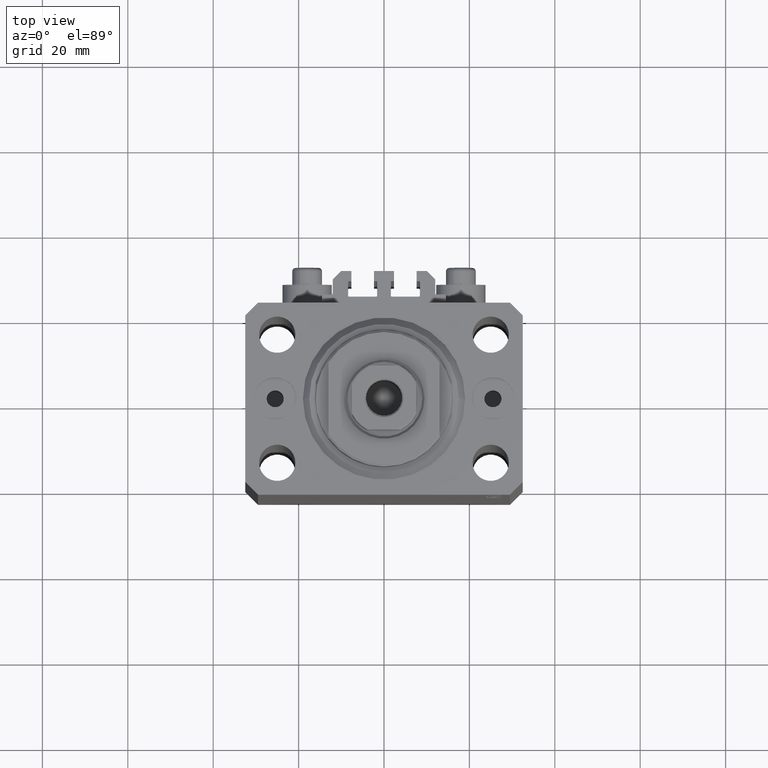
[diagram: clean part render]
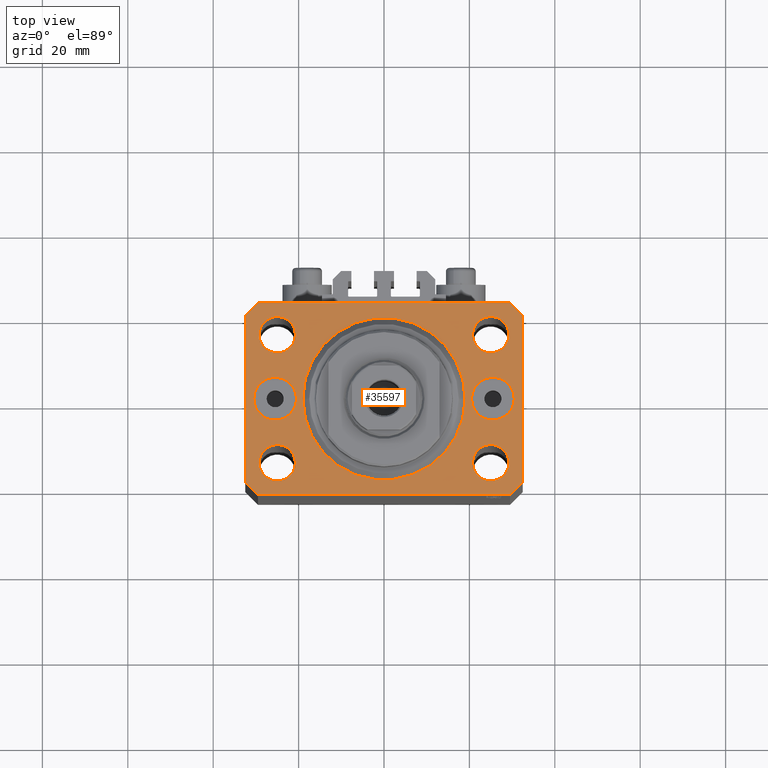
[diagram: same view with one face highlighted and labeled with its STEP entity id]
A machine part, top view. The second image highlights one B-rep face of the part: STEP entity #35597.
In plain terms, the highlighted planar face has unit normal (0, 0, 1).
Its self-contained STEP definition (entity closure, byte-faithful):
#11 = CARTESIAN_POINT ( 'NONE',  ( 25.50000000000000000, 0.000000000000000000, 0.000000000000000000 ) ) ;
#62 = EDGE_CURVE ( 'NONE', #30709, #39190, #8531, .T. ) ;
#297 = EDGE_CURVE ( 'NONE', #20886, #5733, #31755, .T. ) ;
#458 = EDGE_LOOP ( 'NONE', ( #1336, #31829 ) ) ;
#536 = EDGE_CURVE ( 'NONE', #35469, #27269, #33716, .T. ) ;
#679 = DIRECTION ( 'NONE',  ( 0.7071067811865483499, 0.7071067811865466846, 0.000000000000000000 ) ) ;
#1107 = DIRECTION ( 'NONE',  ( 1.000000000000000000, 0.000000000000000000, 0.000000000000000000 ) ) ;
#1118 = VERTEX_POINT ( 'NONE', #40915 ) ;
#1336 = ORIENTED_EDGE ( 'NONE', *, *, #62, .F. ) ;
#1350 = DIRECTION ( 'NONE',  ( -0.7071067811865474617, -0.7071067811865474617, 0.000000000000000000 ) ) ;
#1595 = EDGE_CURVE ( 'NONE', #17518, #26677, #12589, .T. ) ;
#1704 = AXIS2_PLACEMENT_3D ( 'NONE', #16691, #31233, #9516 ) ;
#1795 = EDGE_CURVE ( 'NONE', #38330, #2605, #13954, .T. ) ;
#2057 = VERTEX_POINT ( 'NONE', #22247 ) ;
#2195 = CARTESIAN_POINT ( 'NONE',  ( -32.49999999999650413, 19.49999999999949907, 0.000000000000000000 ) ) ;
#2217 = CIRCLE ( 'NONE', #41838, 4.250000000040370374 ) ;
#2437 = VECTOR ( 'NONE', #35064, 1000.000000000000000 ) ;
#2605 = VERTEX_POINT ( 'NONE', #29698 ) ;
#2774 = DIRECTION ( 'NONE',  ( -0.7071067811865344721, 0.7071067811865606734, 0.000000000000000000 ) ) ;
#2843 = DIRECTION ( 'NONE',  ( 0.000000000000000000, -1.000000000000000000, 0.000000000000000000 ) ) ;
#4123 = CIRCLE ( 'NONE', #17850, 5.000000000003342215 ) ;
#4442 = CIRCLE ( 'NONE', #31120, 5.000000000003342215 ) ;
#4848 = ORIENTED_EDGE ( 'NONE', *, *, #39997, .T. ) ;
#5144 = DIRECTION ( 'NONE',  ( 0.000000000000000000, 0.000000000000000000, 1.000000000000000000 ) ) ;
#5193 = LINE ( 'NONE', #44353, #43874 ) ;
#5555 = DIRECTION ( 'NONE',  ( 0.000000000000000000, 0.000000000000000000, 1.000000000000000000 ) ) ;
#5733 = VERTEX_POINT ( 'NONE', #13589 ) ;
#5743 = EDGE_CURVE ( 'NONE', #2057, #20886, #28136, .T. ) ;
#6066 = CARTESIAN_POINT ( 'NONE',  ( -25.50000000000000000, 0.000000000000000000, 0.000000000000000000 ) ) ;
#6429 = CARTESIAN_POINT ( 'NONE',  ( -32.49999999999650413, 19.49999999999949907, 0.000000000000000000 ) ) ;
#6538 = DIRECTION ( 'NONE',  ( 0.000000000000000000, 0.000000000000000000, 1.000000000000000000 ) ) ;
#6652 = ORIENTED_EDGE ( 'NONE', *, *, #33962, .T. ) ;
#7034 = CARTESIAN_POINT ( 'NONE',  ( -29.25000000004036593, -15.00000000000000355, 0.000000000000000000 ) ) ;
#7504 = CARTESIAN_POINT ( 'NONE',  ( 32.49999999999651124, -19.49999999999949196, 0.000000000000000000 ) ) ;
#7617 = DIRECTION ( 'NONE',  ( 1.000000000000000000, 0.000000000000000000, 0.000000000000000000 ) ) ;
#7676 = VERTEX_POINT ( 'NONE', #10477 ) ;
#7693 = EDGE_LOOP ( 'NONE', ( #6652, #31340 ) ) ;
#8531 = CIRCLE ( 'NONE', #38238, 4.250000000021375790 ) ;
#9057 = AXIS2_PLACEMENT_3D ( 'NONE', #39370, #5555, #14098 ) ;
#9280 = EDGE_CURVE ( 'NONE', #41235, #35738, #4123, .T. ) ;
#9516 = DIRECTION ( 'NONE',  ( 1.000000000000000000, 0.000000000000000000, 0.000000000000000000 ) ) ;
#9555 = CARTESIAN_POINT ( 'NONE',  ( -20.74999999997862687, 14.99999999999999645, 0.000000000000000000 ) ) ;
#9691 = ORIENTED_EDGE ( 'NONE', *, *, #47157, .T. ) ;
#9888 = VERTEX_POINT ( 'NONE', #15848 ) ;
#10058 = EDGE_LOOP ( 'NONE', ( #45728, #42599 ) ) ;
#10477 = CARTESIAN_POINT ( 'NONE',  ( 32.49999999999651124, -19.49999999999949196, 0.000000000000000000 ) ) ;
#10481 = ORIENTED_EDGE ( 'NONE', *, *, #16231, .F. ) ;
#10703 = AXIS2_PLACEMENT_3D ( 'NONE', #20990, #45802, #31954 ) ;
#11188 = EDGE_CURVE ( 'NONE', #39190, #30709, #44564, .T. ) ;
#12589 = LINE ( 'NONE', #15693, #24604 ) ;
#12919 = VECTOR ( 'NONE', #2774, 1000.000000000000000 ) ;
#12958 = EDGE_CURVE ( 'NONE', #5733, #7676, #5193, .T. ) ;
#13060 = CIRCLE ( 'NONE', #30541, 4.249999999957291053 ) ;
#13166 = EDGE_CURVE ( 'NONE', #42314, #1118, #13400, .T. ) ;
#13169 = AXIS2_PLACEMENT_3D ( 'NONE', #13761, #28544, #39280 ) ;
#13366 = LINE ( 'NONE', #6429, #27486 ) ;
#13400 = CIRCLE ( 'NONE', #20258, 19.00000000000000000 ) ;
#13589 = CARTESIAN_POINT ( 'NONE',  ( 29.49999999999650413, -22.49999999999949196, 0.000000000000000000 ) ) ;
#13761 = CARTESIAN_POINT ( 'NONE',  ( 25.50000000000000000, 0.000000000000000000, 0.000000000000000000 ) ) ;
#13954 = CIRCLE ( 'NONE', #13169, 5.000000000003342215 ) ;
#14098 = DIRECTION ( 'NONE',  ( 1.000000000000000000, 0.000000000000000000, -0.000000000000000000 ) ) ;
#15320 = DIRECTION ( 'NONE',  ( 1.000000000000000000, 0.000000000000000000, 0.000000000000000000 ) ) ;
#15360 = CARTESIAN_POINT ( 'NONE',  ( -29.49999999999650413, -22.49999999999949907, 0.000000000000000000 ) ) ;
#15693 = CARTESIAN_POINT ( 'NONE',  ( -29.49999999999650413, 22.49999999999949907, 0.000000000000000000 ) ) ;
#15834 = FACE_BOUND ( 'NONE', #38940, .T. ) ;
#15848 = CARTESIAN_POINT ( 'NONE',  ( 32.49999999999702993, 19.49999999999945999, 0.000000000000000000 ) ) ;
#15914 = DIRECTION ( 'NONE',  ( 1.000000000000000000, 0.000000000000000000, 0.000000000000000000 ) ) ;
#16219 = EDGE_CURVE ( 'NONE', #28636, #18396, #44797, .T. ) ;
#16231 = EDGE_CURVE ( 'NONE', #35738, #41235, #4442, .T. ) ;
#16465 = CARTESIAN_POINT ( 'NONE',  ( 29.49999999999707967, 22.49999999999952038, 0.000000000000000000 ) ) ;
#16691 = CARTESIAN_POINT ( 'NONE',  ( 24.99999999999999289, -15.00000000000000355, 0.000000000000000000 ) ) ;
#16840 = DIRECTION ( 'NONE',  ( 1.000000000000000000, 0.000000000000000000, 0.000000000000000000 ) ) ;
#16969 = CARTESIAN_POINT ( 'NONE',  ( -29.49999999999650413, 22.49999999999949907, 0.000000000000000000 ) ) ;
#17518 = VERTEX_POINT ( 'NONE', #16969 ) ;
#17850 = AXIS2_PLACEMENT_3D ( 'NONE', #37039, #21771, #15320 ) ;
#18396 = VERTEX_POINT ( 'NONE', #33428 ) ;
#18896 = ORIENTED_EDGE ( 'NONE', *, *, #38817, .F. ) ;
#19576 = ORIENTED_EDGE ( 'NONE', *, *, #1595, .T. ) ;
#19936 = ORIENTED_EDGE ( 'NONE', *, *, #44288, .F. ) ;
#20079 = DIRECTION ( 'NONE',  ( 1.000000000000000000, 0.000000000000000000, 0.000000000000000000 ) ) ;
#20258 = AXIS2_PLACEMENT_3D ( 'NONE', #33916, #42244, #20079 ) ;
#20449 = DIRECTION ( 'NONE',  ( 1.000000000000000000, 0.000000000000000000, 0.000000000000000000 ) ) ;
#20456 = CARTESIAN_POINT ( 'NONE',  ( -29.25000000002137668, 14.99999999999999645, 0.000000000000000000 ) ) ;
#20886 = VERTEX_POINT ( 'NONE', #15360 ) ;
#20990 = CARTESIAN_POINT ( 'NONE',  ( 0.000000000000000000, 0.000000000000000000, 0.000000000000000000 ) ) ;
#21031 = CARTESIAN_POINT ( 'NONE',  ( -29.49999999999650413, -22.49999999999949907, 0.000000000000000000 ) ) ;
#21764 = CARTESIAN_POINT ( 'NONE',  ( 19.00000000000000000, 0.000000000000000000, 0.000000000000000000 ) ) ;
#21771 = DIRECTION ( 'NONE',  ( 0.000000000000000000, 0.000000000000000000, 1.000000000000000000 ) ) ;
#21977 = AXIS2_PLACEMENT_3D ( 'NONE', #11, #25074, #32008 ) ;
#22182 = CARTESIAN_POINT ( 'NONE',  ( 20.75000000002367884, -15.00000000000000355, 0.000000000000000000 ) ) ;
#22247 = CARTESIAN_POINT ( 'NONE',  ( -32.49999999999650413, -19.49999999999949907, 0.000000000000000000 ) ) ;
#22531 = FACE_BOUND ( 'NONE', #26452, .T. ) ;
#23145 = EDGE_CURVE ( 'NONE', #18396, #28636, #2217, .T. ) ;
#23225 = FACE_BOUND ( 'NONE', #46289, .T. ) ;
#23305 = DIRECTION ( 'NONE',  ( 0.000000000000000000, 0.000000000000000000, 1.000000000000000000 ) ) ;
#23978 = DIRECTION ( 'NONE',  ( 0.000000000000000000, 0.000000000000000000, 1.000000000000000000 ) ) ;
#24334 = ORIENTED_EDGE ( 'NONE', *, *, #5743, .T. ) ;
#24559 = CARTESIAN_POINT ( 'NONE',  ( -32.49999999999650413, -19.49999999999949907, 0.000000000000000000 ) ) ;
#24604 = VECTOR ( 'NONE', #1350, 1000.000000000000114 ) ;
#25074 = DIRECTION ( 'NONE',  ( 0.000000000000000000, -0.000000000000000000, -1.000000000000000000 ) ) ;
#26097 = FACE_BOUND ( 'NONE', #43917, .T. ) ;
#26452 = EDGE_LOOP ( 'NONE', ( #27898, #18896 ) ) ;
#26538 = AXIS2_PLACEMENT_3D ( 'NONE', #30908, #23978, #16840 ) ;
#26677 = VERTEX_POINT ( 'NONE', #2195 ) ;
#26823 = ORIENTED_EDGE ( 'NONE', *, *, #42962, .T. ) ;
#27269 = VERTEX_POINT ( 'NONE', #22182 ) ;
#27486 = VECTOR ( 'NONE', #2843, 1000.000000000000000 ) ;
#27603 = DIRECTION ( 'NONE',  ( 0.000000000000000000, 0.000000000000000000, 1.000000000000000000 ) ) ;
#27746 = CARTESIAN_POINT ( 'NONE',  ( -20.49999999999665690, 0.000000000000000000, 0.000000000000000000 ) ) ;
#27898 = ORIENTED_EDGE ( 'NONE', *, *, #13166, .F. ) ;
#28136 = LINE ( 'NONE', #24559, #31592 ) ;
#28544 = DIRECTION ( 'NONE',  ( 0.000000000000000000, -0.000000000000000000, -1.000000000000000000 ) ) ;
#28636 = VERTEX_POINT ( 'NONE', #7034 ) ;
#28961 = ORIENTED_EDGE ( 'NONE', *, *, #31846, .F. ) ;
#28963 = DIRECTION ( 'NONE',  ( 0.000000000000000000, 0.000000000000000000, 1.000000000000000000 ) ) ;
#29668 = CARTESIAN_POINT ( 'NONE',  ( -25.00000000000000000, 14.99999999999999645, 0.000000000000000000 ) ) ;
#29698 = CARTESIAN_POINT ( 'NONE',  ( 30.50000000000333955, 0.000000000000000000, 0.000000000000000000 ) ) ;
#30275 = DIRECTION ( 'NONE',  ( 1.000000000000000000, 0.000000000000000000, 0.000000000000000000 ) ) ;
#30376 = FACE_BOUND ( 'NONE', #10058, .T. ) ;
#30541 = AXIS2_PLACEMENT_3D ( 'NONE', #37393, #5144, #1107 ) ;
#30709 = VERTEX_POINT ( 'NONE', #9555 ) ;
#30908 = CARTESIAN_POINT ( 'NONE',  ( -24.99999999999999289, -15.00000000000000355, 0.000000000000000000 ) ) ;
#31046 = CARTESIAN_POINT ( 'NONE',  ( 29.49999999999707967, 22.49999999999952038, 0.000000000000000000 ) ) ;
#31111 = VERTEX_POINT ( 'NONE', #37566 ) ;
#31120 = AXIS2_PLACEMENT_3D ( 'NONE', #6066, #6538, #42824 ) ;
#31233 = DIRECTION ( 'NONE',  ( 0.000000000000000000, 0.000000000000000000, 1.000000000000000000 ) ) ;
#31254 = DIRECTION ( 'NONE',  ( 0.7071067811865474617, -0.7071067811865474617, 0.000000000000000000 ) ) ;
#31340 = ORIENTED_EDGE ( 'NONE', *, *, #1795, .T. ) ;
#31537 = VERTEX_POINT ( 'NONE', #31046 ) ;
#31592 = VECTOR ( 'NONE', #31254, 1000.000000000000114 ) ;
#31755 = LINE ( 'NONE', #21031, #42076 ) ;
#31829 = ORIENTED_EDGE ( 'NONE', *, *, #11188, .F. ) ;
#31846 = EDGE_CURVE ( 'NONE', #27269, #35469, #46243, .T. ) ;
#31954 = DIRECTION ( 'NONE',  ( 1.000000000000000000, 0.000000000000000000, 0.000000000000000000 ) ) ;
#32008 = DIRECTION ( 'NONE',  ( 1.000000000000000000, 0.000000000000000000, 0.000000000000000000 ) ) ;
#32328 = CARTESIAN_POINT ( 'NONE',  ( 29.24999999997631051, -15.00000000000000355, 0.000000000000000000 ) ) ;
#32452 = CARTESIAN_POINT ( 'NONE',  ( -24.99999999999999289, -15.00000000000000355, 0.000000000000000000 ) ) ;
#32792 = EDGE_CURVE ( 'NONE', #7676, #9888, #40197, .T. ) ;
#33423 = AXIS2_PLACEMENT_3D ( 'NONE', #45740, #27603, #20449 ) ;
#33426 = EDGE_CURVE ( 'NONE', #31111, #38207, #35716, .T. ) ;
#33428 = CARTESIAN_POINT ( 'NONE',  ( -20.74999999995962341, -15.00000000000000355, 0.000000000000000000 ) ) ;
#33716 = CIRCLE ( 'NONE', #1704, 4.249999999976314058 ) ;
#33916 = CARTESIAN_POINT ( 'NONE',  ( 0.000000000000000000, 0.000000000000000000, 0.000000000000000000 ) ) ;
#33962 = EDGE_CURVE ( 'NONE', #2605, #38330, #44848, .T. ) ;
#34904 = CARTESIAN_POINT ( 'NONE',  ( -30.50000000000333955, 6.123233995740857512E-16, 0.000000000000000000 ) ) ;
#35064 = DIRECTION ( 'NONE',  ( -1.000000000000000000, -3.528251137580330676E-16, 0.000000000000000000 ) ) ;
#35469 = VERTEX_POINT ( 'NONE', #32328 ) ;
#35597 = ADVANCED_FACE ( 'NONE', ( #40658, #44474, #15834, #26097, #30376, #22531, #23225, #44940 ), #37088, .T. ) ;
#35709 = CARTESIAN_POINT ( 'NONE',  ( 20.49999999999665690, 6.123233995740857512E-16, 0.000000000000000000 ) ) ;
#35716 = CIRCLE ( 'NONE', #33423, 4.249999999957291053 ) ;
#35738 = VERTEX_POINT ( 'NONE', #27746 ) ;
#36648 = DIRECTION ( 'NONE',  ( 1.334402673828349134E-14, 1.000000000000000000, 0.000000000000000000 ) ) ;
#36983 = AXIS2_PLACEMENT_3D ( 'NONE', #29668, #28963, #43984 ) ;
#37039 = CARTESIAN_POINT ( 'NONE',  ( -25.50000000000000000, 0.000000000000000000, 0.000000000000000000 ) ) ;
#37088 = PLANE ( 'NONE',  #9057 ) ;
#37393 = CARTESIAN_POINT ( 'NONE',  ( 25.00000000000000000, 14.99999999999999289, 0.000000000000000000 ) ) ;
#37566 = CARTESIAN_POINT ( 'NONE',  ( 20.75000000004271072, 14.99999999999999289, 0.000000000000000000 ) ) ;
#37687 = CARTESIAN_POINT ( 'NONE',  ( 24.99999999999999289, -15.00000000000000355, 0.000000000000000000 ) ) ;
#37734 = ORIENTED_EDGE ( 'NONE', *, *, #9280, .F. ) ;
#37866 = AXIS2_PLACEMENT_3D ( 'NONE', #37687, #41016, #30275 ) ;
#37923 = LINE ( 'NONE', #16465, #2437 ) ;
#38042 = ORIENTED_EDGE ( 'NONE', *, *, #33426, .F. ) ;
#38064 = EDGE_LOOP ( 'NONE', ( #9691, #19576, #26823, #24334, #40682, #44008, #40334, #4848 ) ) ;
#38207 = VERTEX_POINT ( 'NONE', #38349 ) ;
#38238 = AXIS2_PLACEMENT_3D ( 'NONE', #44551, #23305, #15914 ) ;
#38330 = VERTEX_POINT ( 'NONE', #35709 ) ;
#38349 = CARTESIAN_POINT ( 'NONE',  ( 29.24999999995729283, 14.99999999999999289, 0.000000000000000000 ) ) ;
#38728 = VECTOR ( 'NONE', #36648, 1000.000000000000000 ) ;
#38817 = EDGE_CURVE ( 'NONE', #1118, #42314, #44215, .T. ) ;
#38918 = DIRECTION ( 'NONE',  ( 1.000000000000000000, 1.176083712526788232E-16, 0.000000000000000000 ) ) ;
#38940 = EDGE_LOOP ( 'NONE', ( #19936, #38042 ) ) ;
#39190 = VERTEX_POINT ( 'NONE', #20456 ) ;
#39280 = DIRECTION ( 'NONE',  ( 1.000000000000000000, 0.000000000000000000, 0.000000000000000000 ) ) ;
#39370 = CARTESIAN_POINT ( 'NONE',  ( 0.000000000000000000, 0.000000000000000000, 0.000000000000000000 ) ) ;
#39515 = CARTESIAN_POINT ( 'NONE',  ( 32.49999999999702993, 19.49999999999945999, 0.000000000000000000 ) ) ;
#39997 = EDGE_CURVE ( 'NONE', #9888, #31537, #42878, .T. ) ;
#40197 = LINE ( 'NONE', #7504, #38728 ) ;
#40334 = ORIENTED_EDGE ( 'NONE', *, *, #32792, .T. ) ;
#40658 = FACE_OUTER_BOUND ( 'NONE', #38064, .T. ) ;
#40682 = ORIENTED_EDGE ( 'NONE', *, *, #297, .T. ) ;
#40915 = CARTESIAN_POINT ( 'NONE',  ( -19.00000000000000000, 2.326828918379970970E-15, 0.000000000000000000 ) ) ;
#41016 = DIRECTION ( 'NONE',  ( 0.000000000000000000, 0.000000000000000000, 1.000000000000000000 ) ) ;
#41235 = VERTEX_POINT ( 'NONE', #34904 ) ;
#41838 = AXIS2_PLACEMENT_3D ( 'NONE', #32452, #43892, #7617 ) ;
#42076 = VECTOR ( 'NONE', #38918, 1000.000000000000000 ) ;
#42244 = DIRECTION ( 'NONE',  ( 0.000000000000000000, 0.000000000000000000, 1.000000000000000000 ) ) ;
#42314 = VERTEX_POINT ( 'NONE', #21764 ) ;
#42599 = ORIENTED_EDGE ( 'NONE', *, *, #16219, .F. ) ;
#42788 = ORIENTED_EDGE ( 'NONE', *, *, #536, .F. ) ;
#42824 = DIRECTION ( 'NONE',  ( 1.000000000000000000, 0.000000000000000000, 0.000000000000000000 ) ) ;
#42878 = LINE ( 'NONE', #39515, #12919 ) ;
#42962 = EDGE_CURVE ( 'NONE', #26677, #2057, #13366, .T. ) ;
#43874 = VECTOR ( 'NONE', #679, 1000.000000000000000 ) ;
#43892 = DIRECTION ( 'NONE',  ( 0.000000000000000000, 0.000000000000000000, 1.000000000000000000 ) ) ;
#43917 = EDGE_LOOP ( 'NONE', ( #42788, #28961 ) ) ;
#43984 = DIRECTION ( 'NONE',  ( 1.000000000000000000, 0.000000000000000000, 0.000000000000000000 ) ) ;
#44008 = ORIENTED_EDGE ( 'NONE', *, *, #12958, .T. ) ;
#44215 = CIRCLE ( 'NONE', #10703, 19.00000000000000000 ) ;
#44288 = EDGE_CURVE ( 'NONE', #38207, #31111, #13060, .T. ) ;
#44353 = CARTESIAN_POINT ( 'NONE',  ( 29.49999999999650413, -22.49999999999949196, 0.000000000000000000 ) ) ;
#44474 = FACE_BOUND ( 'NONE', #458, .T. ) ;
#44551 = CARTESIAN_POINT ( 'NONE',  ( -25.00000000000000000, 14.99999999999999645, 0.000000000000000000 ) ) ;
#44564 = CIRCLE ( 'NONE', #36983, 4.250000000021375790 ) ;
#44797 = CIRCLE ( 'NONE', #26538, 4.250000000040370374 ) ;
#44848 = CIRCLE ( 'NONE', #21977, 5.000000000003342215 ) ;
#44940 = FACE_BOUND ( 'NONE', #7693, .T. ) ;
#45728 = ORIENTED_EDGE ( 'NONE', *, *, #23145, .F. ) ;
#45740 = CARTESIAN_POINT ( 'NONE',  ( 25.00000000000000000, 14.99999999999999289, 0.000000000000000000 ) ) ;
#45802 = DIRECTION ( 'NONE',  ( 0.000000000000000000, 0.000000000000000000, 1.000000000000000000 ) ) ;
#46243 = CIRCLE ( 'NONE', #37866, 4.249999999976314058 ) ;
#46289 = EDGE_LOOP ( 'NONE', ( #10481, #37734 ) ) ;
#47157 = EDGE_CURVE ( 'NONE', #31537, #17518, #37923, .T. ) ;